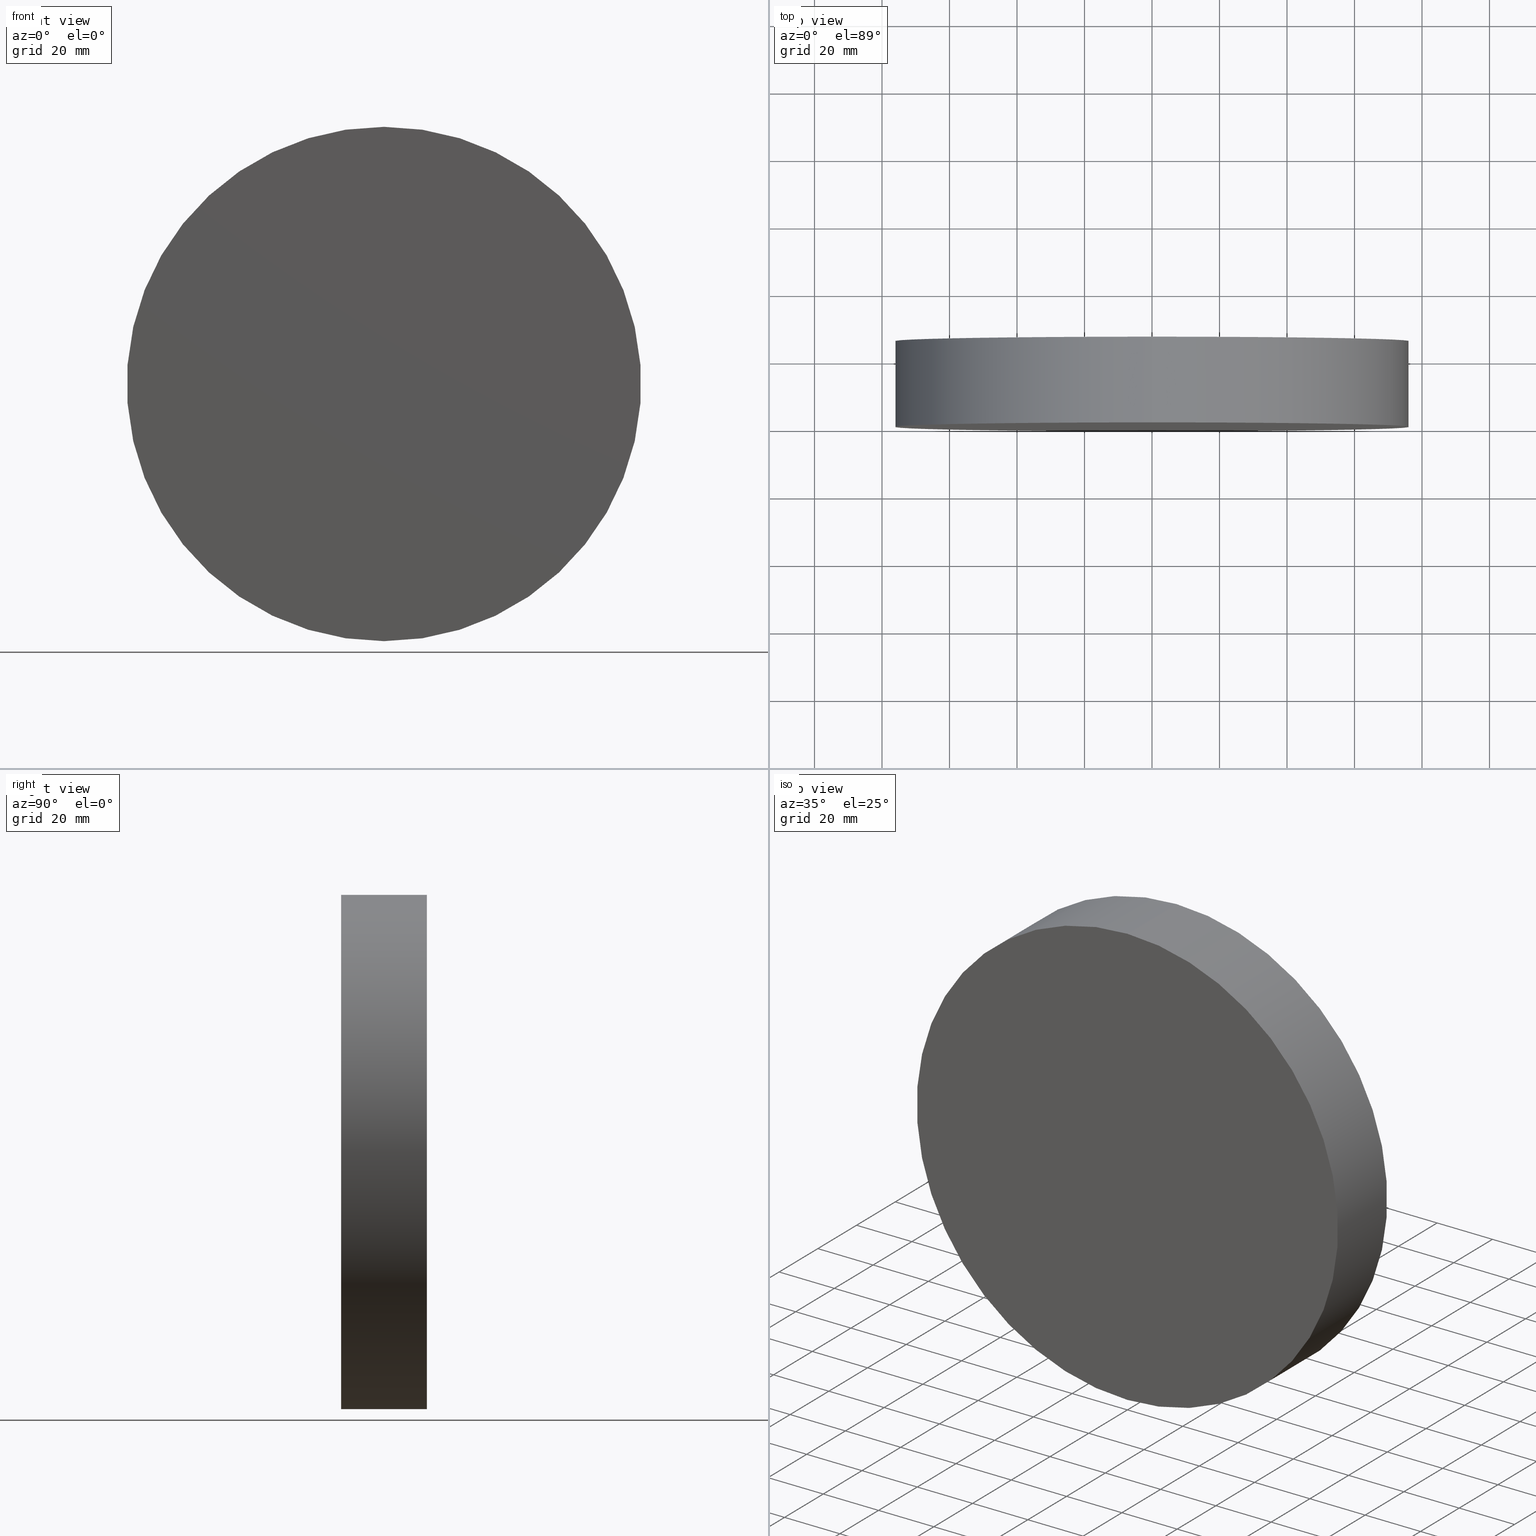
[diagram: canonical four-view strip — front | top / right | iso, engineering-drawing reading convention]
A machine part, canonical four-view strip (front | top / right | iso — engineering-drawing reading convention). The complete STEP part file that produces these views, byte-faithful:
ISO-10303-21;
HEADER;
FILE_DESCRIPTION (( 'STEP AP214' ),
    '1' );
FILE_NAME ('192504.STEP',
    '2019-07-19T05:19:05',
    ( 'user' ),
    ( '΢���й�' ),
    'SwSTEP 2.0',
    'SolidWorks 2016',
    '' );
FILE_SCHEMA (( 'AUTOMOTIVE_DESIGN' ));
ENDSEC;

DATA;
#1 = EDGE_LOOP ( 'NONE', ( #56, #94, #49, #53 ) ) ;
#2 = CARTESIAN_POINT ( 'NONE',  ( 0.0000000000000000000, 25.39999999999999900, 0.0000000000000000000 ) ) ;
#3 = AXIS2_PLACEMENT_3D ( 'NONE', #126, #60, #103 ) ;
#4 = FACE_OUTER_BOUND ( 'NONE', #59, .T. ) ;
#5 = ORIENTED_EDGE ( 'NONE', *, *, #23, .T. ) ;
#6 = VECTOR ( 'NONE', #114, 1000.000000000000000 ) ;
#7 =( NAMED_UNIT ( * ) SI_UNIT ( $, .STERADIAN. ) SOLID_ANGLE_UNIT ( ) );
#8 = ORIENTED_EDGE ( 'NONE', *, *, #33, .F. ) ;
#9 = EDGE_CURVE ( 'NONE', #109, #83, #135, .T. ) ;
#10 =( GEOMETRIC_REPRESENTATION_CONTEXT ( 3 ) GLOBAL_UNCERTAINTY_ASSIGNED_CONTEXT ( ( #39 ) ) GLOBAL_UNIT_ASSIGNED_CONTEXT ( ( #69, #92, #90 ) ) REPRESENTATION_CONTEXT ( 'NONE', 'WORKASPACE' ) );
#11 = MANIFOLD_SOLID_BREP ( '͹̨-����1', #125 ) ;
#12 = FILL_AREA_STYLE ('',( #121 ) ) ;
#13 = COLOUR_RGB ( '',1.000000000000000000, 1.000000000000000000, 1.000000000000000000 ) ;
#14 = SHAPE_DEFINITION_REPRESENTATION ( #27, #52 ) ;
#15 = PRODUCT_DEFINITION_CONTEXT ( 'detailed design', #81, 'design' ) ;
#16 = AXIS2_PLACEMENT_3D ( 'NONE', #35, #97, #31 ) ;
#17 = DIRECTION ( 'NONE',  ( 0.0000000000000000000, 0.0000000000000000000, 1.000000000000000000 ) ) ;
#18 = DIRECTION ( 'NONE',  ( 0.0000000000000000000, 0.0000000000000000000, 1.000000000000000000 ) ) ;
#19 = DIRECTION ( 'NONE',  ( -0.0000000000000000000, -1.000000000000000000, -0.0000000000000000000 ) ) ;
#20 = PLANE ( 'NONE',  #3 ) ;
#21 = SURFACE_STYLE_FILL_AREA ( #12 ) ;
#22 = ADVANCED_FACE ( 'NONE', ( #106 ), #36, .T. ) ;
#23 = EDGE_CURVE ( 'NONE', #66, #78, #91, .T. ) ;
#24 = ORIENTED_EDGE ( 'NONE', *, *, #9, .F. ) ;
#25 = PRODUCT_CONTEXT ( 'NONE', #58, 'mechanical' ) ;
#26 = AXIS2_PLACEMENT_3D ( 'NONE', #65, #19, #85 ) ;
#27 = PRODUCT_DEFINITION_SHAPE ( 'NONE', 'NONE',  #87 ) ;
#28 =( NAMED_UNIT ( * ) PLANE_ANGLE_UNIT ( ) SI_UNIT ( $, .RADIAN. ) );
#29 = ORIENTED_EDGE ( 'NONE', *, *, #93, .T. ) ;
#30 = UNCERTAINTY_MEASURE_WITH_UNIT (LENGTH_MEASURE( 1.000000000000000100E-005 ), #44, 'distance_accuracy_value', 'NONE');
#31 = DIRECTION ( 'NONE',  ( 0.0000000000000000000, 0.0000000000000000000, 1.000000000000000000 ) ) ;
#32 = ORIENTED_EDGE ( 'NONE', *, *, #33, .T. ) ;
#33 = EDGE_CURVE ( 'NONE', #78, #66, #120, .T. ) ;
#34 = AXIS2_PLACEMENT_3D ( 'NONE', #37, #107, #104 ) ;
#35 = CARTESIAN_POINT ( 'NONE',  ( 0.0000000000000000000, 0.0000000000000000000, 0.0000000000000000000 ) ) ;
#36 = CYLINDRICAL_SURFACE ( 'NONE', #127, 76.20000000000000300 ) ;
#37 = CARTESIAN_POINT ( 'NONE',  ( 0.0000000000000000000, 25.39999999999999900, 0.0000000000000000000 ) ) ;
#38 = COLOUR_RGB ( '',1.000000000000000000, 1.000000000000000000, 1.000000000000000000 ) ;
#39 = UNCERTAINTY_MEASURE_WITH_UNIT (LENGTH_MEASURE( 1.000000000000000100E-005 ), #69, 'distance_accuracy_value', 'NONE');
#40 = CARTESIAN_POINT ( 'NONE',  ( 9.331808609502832200E-015, 0.0000000000000000000, 76.20000000000000300 ) ) ;
#41 = CYLINDRICAL_SURFACE ( 'NONE', #26, 76.20000000000000300 ) ;
#42 = SURFACE_STYLE_USAGE ( .BOTH. , #99 ) ;
#43 = APPLICATION_PROTOCOL_DEFINITION ( 'draft international standard', 'automotive_design', 1998, #81 ) ;
#44 =( LENGTH_UNIT ( ) NAMED_UNIT ( * ) SI_UNIT ( .MILLI., .METRE. ) );
#45 = SURFACE_STYLE_FILL_AREA ( #75 ) ;
#46 = STYLED_ITEM ( 'NONE', ( #80 ), #52 ) ;
#47 =( NAMED_UNIT ( * ) PLANE_ANGLE_UNIT ( ) SI_UNIT ( $, .RADIAN. ) );
#48 = DIRECTION ( 'NONE',  ( 0.0000000000000000000, 1.000000000000000000, 0.0000000000000000000 ) ) ;
#49 = ORIENTED_EDGE ( 'NONE', *, *, #138, .T. ) ;
#50 = CARTESIAN_POINT ( 'NONE',  ( 0.0000000000000000000, 0.0000000000000000000, 0.0000000000000000000 ) ) ;
#51 = CARTESIAN_POINT ( 'NONE',  ( 0.0000000000000000000, 25.39999999999999900, 0.0000000000000000000 ) ) ;
#52 = ADVANCED_BREP_SHAPE_REPRESENTATION ( '192504', ( #11, #79 ), #10 ) ;
#53 = ORIENTED_EDGE ( 'NONE', *, *, #9, .T. ) ;
#54 = PRESENTATION_LAYER_ASSIGNMENT (  '', '', ( #133 ) ) ;
#55 = PRESENTATION_LAYER_ASSIGNMENT (  '', '', ( #46 ) ) ;
#56 = ORIENTED_EDGE ( 'NONE', *, *, #123, .F. ) ;
#57 =( GEOMETRIC_REPRESENTATION_CONTEXT ( 3 ) GLOBAL_UNCERTAINTY_ASSIGNED_CONTEXT ( ( #105 ) ) GLOBAL_UNIT_ASSIGNED_CONTEXT ( ( #132, #28, #7 ) ) REPRESENTATION_CONTEXT ( 'NONE', 'WORKASPACE' ) );
#58 = APPLICATION_CONTEXT ( 'automotive_design' ) ;
#59 = EDGE_LOOP ( 'NONE', ( #24, #88 ) ) ;
#60 = DIRECTION ( 'NONE',  ( 0.0000000000000000000, 1.000000000000000000, 0.0000000000000000000 ) ) ;
#61 =( NAMED_UNIT ( * ) SI_UNIT ( $, .STERADIAN. ) SOLID_ANGLE_UNIT ( ) );
#62 = MECHANICAL_DESIGN_GEOMETRIC_PRESENTATION_REPRESENTATION (  '', ( #46 ), #57 ) ;
#63 = CIRCLE ( 'NONE', #139, 76.20000000000000300 ) ;
#64 = DIRECTION ( 'NONE',  ( 0.0000000000000000000, 0.0000000000000000000, 1.000000000000000000 ) ) ;
#65 = CARTESIAN_POINT ( 'NONE',  ( 0.0000000000000000000, 25.39999999999999900, 0.0000000000000000000 ) ) ;
#66 = VERTEX_POINT ( 'NONE', #134 ) ;
#67 = LINE ( 'NONE', #115, #6 ) ;
#68 = ADVANCED_FACE ( 'NONE', ( #4 ), #20, .F. ) ;
#69 =( LENGTH_UNIT ( ) NAMED_UNIT ( * ) SI_UNIT ( .MILLI., .METRE. ) );
#70 = VECTOR ( 'NONE', #113, 1000.000000000000000 ) ;
#71 = APPLICATION_PROTOCOL_DEFINITION ( 'draft international standard', 'automotive_design', 1998, #58 ) ;
#72 = CARTESIAN_POINT ( 'NONE',  ( 0.0000000000000000000, 25.39999999999999900, 0.0000000000000000000 ) ) ;
#73 = FILL_AREA_STYLE_COLOUR ( '', #13 ) ;
#74 = DIRECTION ( 'NONE',  ( 0.0000000000000000000, 0.0000000000000000000, -1.000000000000000000 ) ) ;
#75 = FILL_AREA_STYLE ('',( #73 ) ) ;
#76 = DIRECTION ( 'NONE',  ( 0.0000000000000000000, 0.0000000000000000000, 1.000000000000000000 ) ) ;
#77 = PRESENTATION_STYLE_ASSIGNMENT (( #82 ) ) ;
#78 = VERTEX_POINT ( 'NONE', #130 ) ;
#79 = AXIS2_PLACEMENT_3D ( 'NONE', #95, #76, #129 ) ;
#80 = PRESENTATION_STYLE_ASSIGNMENT (( #42 ) ) ;
#81 = APPLICATION_CONTEXT ( 'automotive_design' ) ;
#82 = SURFACE_STYLE_USAGE ( .BOTH. , #117 ) ;
#83 = VERTEX_POINT ( 'NONE', #40 ) ;
#84 = DIRECTION ( 'NONE',  ( -0.0000000000000000000, -1.000000000000000000, -0.0000000000000000000 ) ) ;
#85 = DIRECTION ( 'NONE',  ( 0.0000000000000000000, 0.0000000000000000000, -1.000000000000000000 ) ) ;
#86 = ORIENTED_EDGE ( 'NONE', *, *, #123, .T. ) ;
#87 = PRODUCT_DEFINITION ( 'δ֪', '', #96, #15 ) ;
#88 = ORIENTED_EDGE ( 'NONE', *, *, #93, .F. ) ;
#89 = PRODUCT ( '192504', '192504', '', ( #25 ) ) ;
#90 =( NAMED_UNIT ( * ) SI_UNIT ( $, .STERADIAN. ) SOLID_ANGLE_UNIT ( ) );
#91 = CIRCLE ( 'NONE', #119, 76.20000000000000300 ) ;
#92 =( NAMED_UNIT ( * ) PLANE_ANGLE_UNIT ( ) SI_UNIT ( $, .RADIAN. ) );
#93 = EDGE_CURVE ( 'NONE', #83, #109, #63, .T. ) ;
#94 = ORIENTED_EDGE ( 'NONE', *, *, #23, .F. ) ;
#95 = CARTESIAN_POINT ( 'NONE',  ( 0.0000000000000000000, 0.0000000000000000000, 0.0000000000000000000 ) ) ;
#96 = PRODUCT_DEFINITION_FORMATION_WITH_SPECIFIED_SOURCE ( '�κ�', '', #89, .NOT_KNOWN. ) ;
#97 = DIRECTION ( 'NONE',  ( 0.0000000000000000000, 1.000000000000000000, 0.0000000000000000000 ) ) ;
#98 = MECHANICAL_DESIGN_GEOMETRIC_PRESENTATION_REPRESENTATION (  '', ( #133 ), #100 ) ;
#99 = SURFACE_SIDE_STYLE ('',( #45 ) ) ;
#100 =( GEOMETRIC_REPRESENTATION_CONTEXT ( 3 ) GLOBAL_UNCERTAINTY_ASSIGNED_CONTEXT ( ( #30 ) ) GLOBAL_UNIT_ASSIGNED_CONTEXT ( ( #44, #47, #61 ) ) REPRESENTATION_CONTEXT ( 'NONE', 'WORKASPACE' ) );
#101 = PRODUCT_RELATED_PRODUCT_CATEGORY ( 'part', '', ( #89 ) ) ;
#102 = CARTESIAN_POINT ( 'NONE',  ( 0.0000000000000000000, 25.39999999999999900, -76.20000000000000300 ) ) ;
#103 = DIRECTION ( 'NONE',  ( 0.0000000000000000000, -0.0000000000000000000, 1.000000000000000000 ) ) ;
#104 = DIRECTION ( 'NONE',  ( 0.0000000000000000000, -0.0000000000000000000, 1.000000000000000000 ) ) ;
#105 = UNCERTAINTY_MEASURE_WITH_UNIT (LENGTH_MEASURE( 1.000000000000000100E-005 ), #132, 'distance_accuracy_value', 'NONE');
#106 = FACE_OUTER_BOUND ( 'NONE', #112, .T. ) ;
#107 = DIRECTION ( 'NONE',  ( 0.0000000000000000000, 1.000000000000000000, 0.0000000000000000000 ) ) ;
#108 = DIRECTION ( 'NONE',  ( 0.0000000000000000000, 1.000000000000000000, 0.0000000000000000000 ) ) ;
#109 = VERTEX_POINT ( 'NONE', #118 ) ;
#110 = AXIS2_PLACEMENT_3D ( 'NONE', #72, #48, #64 ) ;
#111 = ADVANCED_FACE ( 'NONE', ( #122 ), #41, .T. ) ;
#112 = EDGE_LOOP ( 'NONE', ( #8, #86, #29, #137 ) ) ;
#113 = DIRECTION ( 'NONE',  ( -0.0000000000000000000, -1.000000000000000000, -0.0000000000000000000 ) ) ;
#114 = DIRECTION ( 'NONE',  ( -0.0000000000000000000, -1.000000000000000000, -0.0000000000000000000 ) ) ;
#115 = CARTESIAN_POINT ( 'NONE',  ( 9.331808609502832200E-015, 25.39999999999999900, 76.20000000000000300 ) ) ;
#116 = PLANE ( 'NONE',  #34 ) ;
#117 = SURFACE_SIDE_STYLE ('',( #21 ) ) ;
#118 = CARTESIAN_POINT ( 'NONE',  ( 0.0000000000000000000, 0.0000000000000000000, -76.20000000000000300 ) ) ;
#119 = AXIS2_PLACEMENT_3D ( 'NONE', #51, #108, #18 ) ;
#120 = CIRCLE ( 'NONE', #110, 76.20000000000000300 ) ;
#121 = FILL_AREA_STYLE_COLOUR ( '', #38 ) ;
#122 = FACE_OUTER_BOUND ( 'NONE', #1, .T. ) ;
#123 = EDGE_CURVE ( 'NONE', #78, #83, #67, .T. ) ;
#124 = ADVANCED_FACE ( 'NONE', ( #131 ), #116, .T. ) ;
#125 = CLOSED_SHELL ( 'NONE', ( #22, #111, #124, #68 ) ) ;
#126 = CARTESIAN_POINT ( 'NONE',  ( 0.0000000000000000000, 0.0000000000000000000, 0.0000000000000000000 ) ) ;
#127 = AXIS2_PLACEMENT_3D ( 'NONE', #2, #84, #74 ) ;
#128 = LINE ( 'NONE', #102, #70 ) ;
#129 = DIRECTION ( 'NONE',  ( 1.000000000000000000, 0.0000000000000000000, 0.0000000000000000000 ) ) ;
#130 = CARTESIAN_POINT ( 'NONE',  ( 9.331808609502832200E-015, 25.39999999999999900, 76.20000000000000300 ) ) ;
#131 = FACE_OUTER_BOUND ( 'NONE', #140, .T. ) ;
#132 =( LENGTH_UNIT ( ) NAMED_UNIT ( * ) SI_UNIT ( .MILLI., .METRE. ) );
#133 = STYLED_ITEM ( 'NONE', ( #77 ), #11 ) ;
#134 = CARTESIAN_POINT ( 'NONE',  ( 0.0000000000000000000, 25.39999999999999900, -76.20000000000000300 ) ) ;
#135 = CIRCLE ( 'NONE', #16, 76.20000000000000300 ) ;
#136 = DIRECTION ( 'NONE',  ( 0.0000000000000000000, 1.000000000000000000, 0.0000000000000000000 ) ) ;
#137 = ORIENTED_EDGE ( 'NONE', *, *, #138, .F. ) ;
#138 = EDGE_CURVE ( 'NONE', #66, #109, #128, .T. ) ;
#139 = AXIS2_PLACEMENT_3D ( 'NONE', #50, #136, #17 ) ;
#140 = EDGE_LOOP ( 'NONE', ( #5, #32 ) ) ;
ENDSEC;
END-ISO-10303-21;
